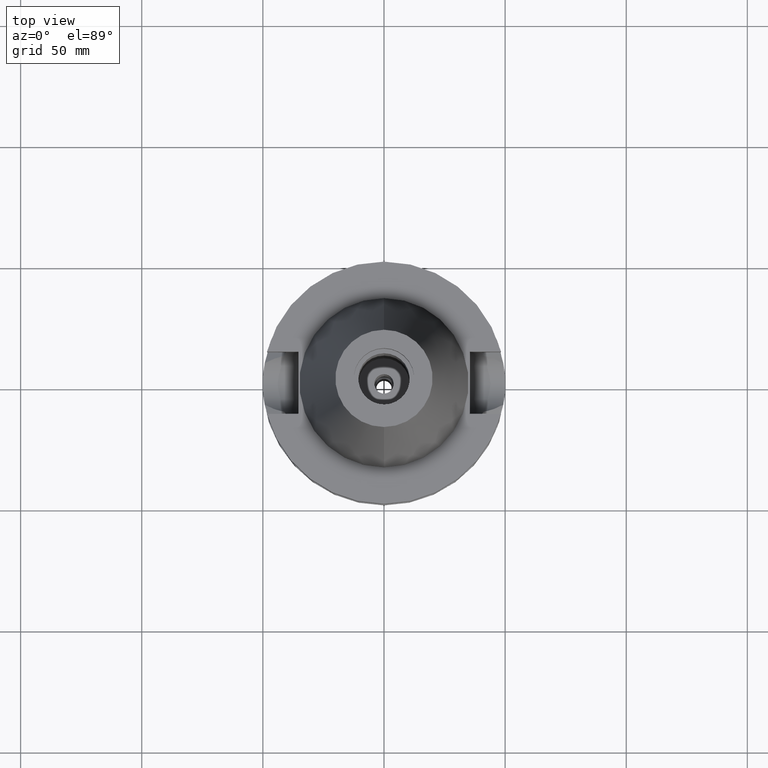
[diagram: clean part render]
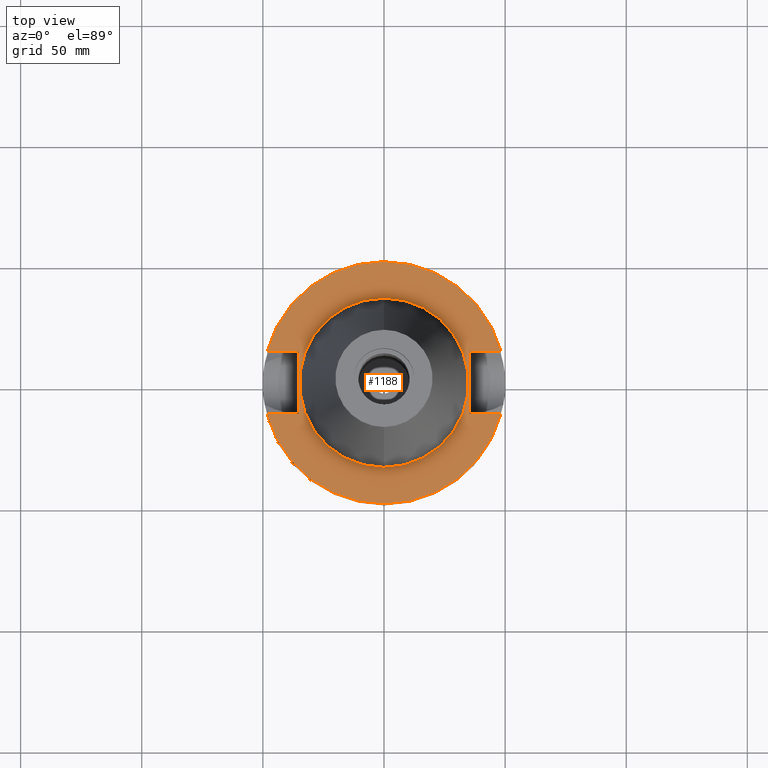
[diagram: same view with one face highlighted and labeled with its STEP entity id]
A machine part, top view. The second image highlights one B-rep face of the part: STEP entity #1188.
In plain terms, the highlighted planar face has unit normal (0, 0, -1).
Its self-contained STEP definition (entity closure, byte-faithful):
#17 = LINE ( 'NONE', #1432, #3144 ) ;
#52 = DIRECTION ( 'NONE',  ( 0.0000000000000000000, -1.000000000000000000, 0.0000000000000000000 ) ) ;
#69 = DIRECTION ( 'NONE',  ( 0.0000000000000000000, -1.000000000000000000, 0.0000000000000000000 ) ) ;
#81 = VERTEX_POINT ( 'NONE', #3015 ) ;
#154 = DIRECTION ( 'NONE',  ( 0.0000000000000000000, 0.0000000000000000000, 1.000000000000000000 ) ) ;
#166 = CARTESIAN_POINT ( 'NONE',  ( -35.39999999999999858, -12.84999999999999964, -1.500000000000000000 ) ) ;
#167 = EDGE_CURVE ( 'NONE', #1174, #3004, #3128, .T. ) ;
#172 = AXIS2_PLACEMENT_3D ( 'NONE', #790, #2500, #69 ) ;
#192 = CARTESIAN_POINT ( 'NONE',  ( 0.0000000000000000000, 2.629806536488999751E-14, -1.500000000000000000 ) ) ;
#244 = ORIENTED_EDGE ( 'NONE', *, *, #2432, .F. ) ;
#294 = CARTESIAN_POINT ( 'NONE',  ( 0.0000000000000000000, 2.629806536488999751E-14, -1.500000000000000000 ) ) ;
#424 = VECTOR ( 'NONE', #2392, 1000.000000000000000 ) ;
#456 = DIRECTION ( 'NONE',  ( -1.000000000000000000, 0.0000000000000000000, 0.0000000000000000000 ) ) ;
#533 = ORIENTED_EDGE ( 'NONE', *, *, #2568, .F. ) ;
#569 = DIRECTION ( 'NONE',  ( 0.0000000000000000000, 0.0000000000000000000, 1.000000000000000000 ) ) ;
#648 = CARTESIAN_POINT ( 'NONE',  ( -48.32057015392000210, 12.84999999999999964, -1.500000000000000000 ) ) ;
#657 = LINE ( 'NONE', #866, #839 ) ;
#676 = VERTEX_POINT ( 'NONE', #2819 ) ;
#711 = ORIENTED_EDGE ( 'NONE', *, *, #2876, .F. ) ;
#727 = VERTEX_POINT ( 'NONE', #2346 ) ;
#734 = AXIS2_PLACEMENT_3D ( 'NONE', #1360, #154, #1612 ) ;
#787 = ORIENTED_EDGE ( 'NONE', *, *, #2647, .T. ) ;
#790 = CARTESIAN_POINT ( 'NONE',  ( 0.0000000000000000000, 2.629806536488999751E-14, -1.500000000000000000 ) ) ;
#833 = VERTEX_POINT ( 'NONE', #648 ) ;
#837 = AXIS2_PLACEMENT_3D ( 'NONE', #294, #569, #2036 ) ;
#839 = VECTOR ( 'NONE', #2103, 1000.000000000000000 ) ;
#850 = DIRECTION ( 'NONE',  ( 0.0000000000000000000, 1.000000000000000000, 0.0000000000000000000 ) ) ;
#866 = CARTESIAN_POINT ( 'NONE',  ( -35.39999999999999858, 12.84999999999999964, -1.500000000000000000 ) ) ;
#915 = LINE ( 'NONE', #1893, #424 ) ;
#958 = DIRECTION ( 'NONE',  ( 0.0000000000000000000, -1.000000000000000000, 0.0000000000000000000 ) ) ;
#992 = FACE_OUTER_BOUND ( 'NONE', #1066, .T. ) ;
#1004 = VERTEX_POINT ( 'NONE', #2454 ) ;
#1045 = CIRCLE ( 'NONE', #2281, 50.00000000000000000 ) ;
#1066 = EDGE_LOOP ( 'NONE', ( #2799, #1687, #244, #1147, #787, #2851, #711, #1995 ) ) ;
#1147 = ORIENTED_EDGE ( 'NONE', *, *, #1797, .F. ) ;
#1174 = VERTEX_POINT ( 'NONE', #2514 ) ;
#1188 = ADVANCED_FACE ( 'NONE', ( #992, #2719 ), #2016, .F. ) ;
#1233 = CIRCLE ( 'NONE', #837, 34.92499999999999716 ) ;
#1251 = AXIS2_PLACEMENT_3D ( 'NONE', #2943, #1967, #52 ) ;
#1360 = CARTESIAN_POINT ( 'NONE',  ( 0.0000000000000000000, 2.629806536488999751E-14, -1.500000000000000000 ) ) ;
#1432 = CARTESIAN_POINT ( 'NONE',  ( 35.39999999999999858, 12.84999999999999964, -1.500000000000000000 ) ) ;
#1437 = CIRCLE ( 'NONE', #172, 50.00000000000000000 ) ;
#1548 = EDGE_CURVE ( 'NONE', #833, #3043, #1045, .T. ) ;
#1552 = VERTEX_POINT ( 'NONE', #1619 ) ;
#1555 = CARTESIAN_POINT ( 'NONE',  ( 35.39999999999999858, -12.84999999999999964, -1.500000000000000000 ) ) ;
#1609 = DIRECTION ( 'NONE',  ( 0.0000000000000000000, 1.000000000000000000, 0.0000000000000000000 ) ) ;
#1612 = DIRECTION ( 'NONE',  ( 0.0000000000000000000, 1.000000000000000000, 0.0000000000000000000 ) ) ;
#1619 = CARTESIAN_POINT ( 'NONE',  ( 35.39999999999999858, -12.84999999999999964, -1.500000000000000000 ) ) ;
#1650 = CARTESIAN_POINT ( 'NONE',  ( -35.39999999999999858, -12.84999999999999964, -1.500000000000000000 ) ) ;
#1676 = VECTOR ( 'NONE', #1609, 1000.000000000000000 ) ;
#1687 = ORIENTED_EDGE ( 'NONE', *, *, #2409, .F. ) ;
#1697 = VECTOR ( 'NONE', #3019, 1000.000000000000000 ) ;
#1789 = ORIENTED_EDGE ( 'NONE', *, *, #2276, .F. ) ;
#1797 = EDGE_CURVE ( 'NONE', #2694, #1552, #17, .T. ) ;
#1893 = CARTESIAN_POINT ( 'NONE',  ( 35.39999999999999858, 12.84999999999999964, -1.500000000000000000 ) ) ;
#1933 = CARTESIAN_POINT ( 'NONE',  ( -35.39999999999999858, 12.84999999999999964, -1.500000000000000000 ) ) ;
#1967 = DIRECTION ( 'NONE',  ( 0.0000000000000000000, 0.0000000000000000000, -1.000000000000000000 ) ) ;
#1995 = ORIENTED_EDGE ( 'NONE', *, *, #167, .F. ) ;
#2000 = CIRCLE ( 'NONE', #734, 34.92499999999999716 ) ;
#2016 = PLANE ( 'NONE',  #1251 ) ;
#2036 = DIRECTION ( 'NONE',  ( 0.0000000000000000000, -1.000000000000000000, 0.0000000000000000000 ) ) ;
#2049 = LINE ( 'NONE', #1555, #1697 ) ;
#2103 = DIRECTION ( 'NONE',  ( -1.000000000000000000, 0.0000000000000000000, 0.0000000000000000000 ) ) ;
#2116 = VECTOR ( 'NONE', #456, 1000.000000000000000 ) ;
#2148 = EDGE_CURVE ( 'NONE', #1174, #727, #2649, .T. ) ;
#2200 = EDGE_LOOP ( 'NONE', ( #533, #1789 ) ) ;
#2237 = CARTESIAN_POINT ( 'NONE',  ( 35.39999999999999858, 12.84999999999999964, -1.500000000000000000 ) ) ;
#2276 = EDGE_CURVE ( 'NONE', #676, #1004, #1233, .T. ) ;
#2281 = AXIS2_PLACEMENT_3D ( 'NONE', #192, #2352, #850 ) ;
#2346 = CARTESIAN_POINT ( 'NONE',  ( -48.32057015392000210, -12.84999999999999964, -1.500000000000000000 ) ) ;
#2352 = DIRECTION ( 'NONE',  ( 0.0000000000000000000, 0.0000000000000000000, -1.000000000000000000 ) ) ;
#2392 = DIRECTION ( 'NONE',  ( 1.000000000000000000, 0.0000000000000000000, 0.0000000000000000000 ) ) ;
#2409 = EDGE_CURVE ( 'NONE', #81, #727, #1437, .T. ) ;
#2432 = EDGE_CURVE ( 'NONE', #1552, #81, #2049, .T. ) ;
#2443 = CARTESIAN_POINT ( 'NONE',  ( 48.32057015392000210, 12.84999999999999964, -1.500000000000000000 ) ) ;
#2454 = CARTESIAN_POINT ( 'NONE',  ( 0.0000000000000000000, 34.92499999999999716, -1.500000000000000000 ) ) ;
#2500 = DIRECTION ( 'NONE',  ( 0.0000000000000000000, 0.0000000000000000000, -1.000000000000000000 ) ) ;
#2514 = CARTESIAN_POINT ( 'NONE',  ( -35.39999999999999858, -12.84999999999999964, -1.500000000000000000 ) ) ;
#2568 = EDGE_CURVE ( 'NONE', #1004, #676, #2000, .T. ) ;
#2647 = EDGE_CURVE ( 'NONE', #2694, #3043, #915, .T. ) ;
#2649 = LINE ( 'NONE', #1650, #2116 ) ;
#2694 = VERTEX_POINT ( 'NONE', #2237 ) ;
#2719 = FACE_BOUND ( 'NONE', #2200, .T. ) ;
#2799 = ORIENTED_EDGE ( 'NONE', *, *, #2148, .T. ) ;
#2819 = CARTESIAN_POINT ( 'NONE',  ( 0.0000000000000000000, -34.92499999999999716, -1.500000000000000000 ) ) ;
#2851 = ORIENTED_EDGE ( 'NONE', *, *, #1548, .F. ) ;
#2876 = EDGE_CURVE ( 'NONE', #3004, #833, #657, .T. ) ;
#2943 = CARTESIAN_POINT ( 'NONE',  ( 0.0000000000000000000, 1.206277097159999845E-14, -1.500000000000000000 ) ) ;
#3004 = VERTEX_POINT ( 'NONE', #1933 ) ;
#3015 = CARTESIAN_POINT ( 'NONE',  ( 48.32057015392000210, -12.84999999999999964, -1.500000000000000000 ) ) ;
#3019 = DIRECTION ( 'NONE',  ( 1.000000000000000000, 0.0000000000000000000, 0.0000000000000000000 ) ) ;
#3043 = VERTEX_POINT ( 'NONE', #2443 ) ;
#3128 = LINE ( 'NONE', #166, #1676 ) ;
#3144 = VECTOR ( 'NONE', #958, 1000.000000000000000 ) ;